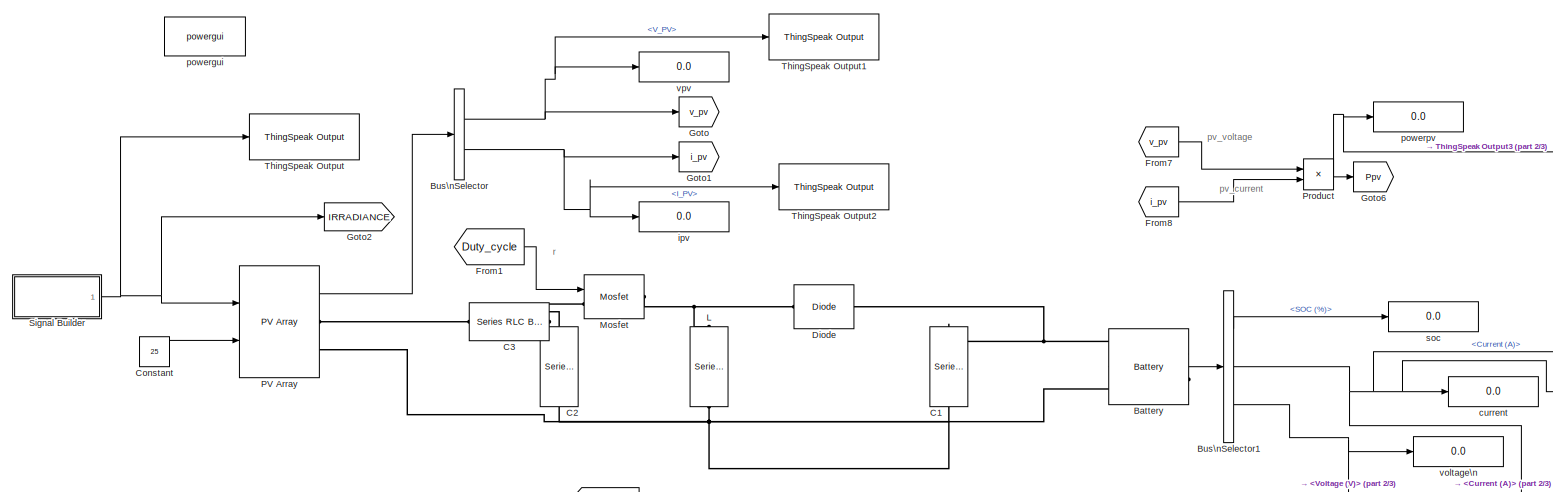
[diagram: root canvas - part 1/3, full width, top band]
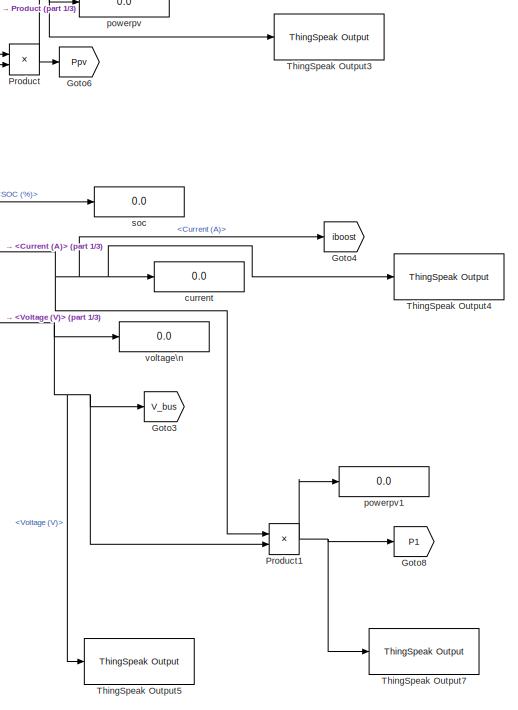
[diagram: root canvas - part 2/3, right side, full height]
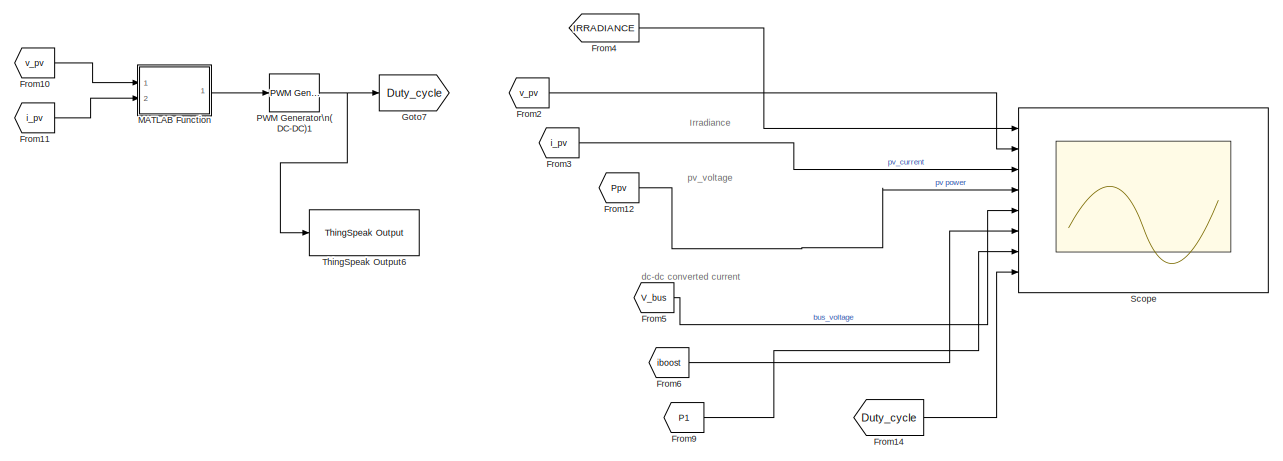
[diagram: root canvas - part 3/3, bottom center region]
MODEL mpptbuclboostPandO
KIND model
BLOCK [Reference] Battery  REF=spsBatteryLib/Battery
  BatType = Lead-Acid
  Batt_Tr = 1
  Char_age = [2.3478, 3]
  Dis_age = [2.3478, 10]
  Dis_rate = 20
  Dp = 0
  FullV = 13.0658
  FullV2 = 7.1
  MaxQ = 104.1667
  MaxQ2 = 4.8
  MinV = 9
  N1 = 1500
  N2 = 10500
  N3 = 1000
  N4 = 1400
  N5 = 950
  Neq0 = 0
  NomQ = 100
  NomT = 20
  NomV = 12
  Normal_OP = 31.0278
  Normal_OP2 = 5.655
  Ports = [0, 1, 0, 0, 0, 2]
  PresetModel = on
  Qeol = 5.4*0.9
  R = 0.0012
  RTWMemSecDataConstants = Inherit from model
  RTWMemSecDataInternal = Inherit from model
  RTWMemSecDataParameters = Inherit from model
  RTWMemSecFuncExecute = Inherit from model
  RTWMemSecFuncInitTerm = Inherit from model
  Rca = 0.6
  Reol = 0.013333*1.2
  SID = 1
  SOC = 45
  ShowAgeParam = off
  ShowTempParam = off
  SourceBlock = spsBatteryLib/Battery
  SourceProductBaseCode = PS
  SourceType = Battery
  T2 = -30
  Ta1 = 25
  Ta2 = 45
  Tci = 20
  ThermalPreset = no
  Tsim = 1e6
  Units = Time
  current = [6.5 13 32.5]
  expZone = [12.2171     0.333333]
  expZone2 = [6.58           1]
  ti = 2000
BLOCK [BusSelector] Bus\nSelector
  OutputSignals = V_PV,I_PV
  Ports = [1, 2]
  SID = 2
BLOCK [BusSelector] Bus\nSelector1
  OutputSignals = SOC (%),Current (A),Voltage (V)
  Ports = [1, 3]
  SID = 3
BLOCK [Reference] C1  REF=spsSeriesRLCBranchLib/Series RLC Branch
  BranchType = C
  Capacitance = 1.850e-6
  Inductance = 1e-3
  InitialCurrent = 0
  InitialVoltage = 0
  LConnTagsString = __new0
  Measurements = None
  NameLocation = left
  Ports = [0, 0, 0, 0, 0, 1, 1]
  RConnTagsString = __new0
  Resistance = 1
  SID = 4
  SetiL0 = off
  Setx0 = off
  SourceBlock = spsSeriesRLCBranchLib/Series RLC Branch
  SourceProductBaseCode = PS
  SourceType = Series RLC Branch
BLOCK [Reference] C2  REF=spsSeriesRLCBranchLib/Series RLC Branch
  BranchType = C
  Capacitance = 1000e-6
  Inductance = 1e-3
  InitialCurrent = 0
  InitialVoltage = 0
  LConnTagsString = __new0
  Measurements = None
  NameLocation = left
  Ports = [0, 0, 0, 0, 0, 1, 1]
  RConnTagsString = __new0
  Resistance = 0.001
  SID = 5
  SetiL0 = off
  Setx0 = off
  SourceBlock = spsSeriesRLCBranchLib/Series RLC Branch
  SourceProductBaseCode = PS
  SourceType = Series RLC Branch
BLOCK [Reference] C3  REF=spsSeriesRLCBranchLib/Series RLC Branch
  BranchType = R
  Capacitance = 1000e-6
  Inductance = 1e-3
  InitialCurrent = 0
  InitialVoltage = 0
  LConnTagsString = __new0
  Measurements = None
  NameLocation = top
  Ports = [0, 0, 0, 0, 0, 1, 1]
  RConnTagsString = __new0
  Resistance = 0.0001
  SID = 6
  SetiL0 = off
  Setx0 = off
  SourceBlock = spsSeriesRLCBranchLib/Series RLC Branch
  SourceProductBaseCode = PS
  SourceType = Series RLC Branch
BLOCK [Constant] Constant
  SID = 7
  Value = 25
BLOCK [Reference] Diode  REF=spsDiodeLib/Diode
  Cs = 250e-9
  IC = 0
  Lon = 0
  Measurements = off
  NameLocation = top
  Ports = [0, 0, 0, 0, 0, 1, 1]
  RTWMemSecDataConstants = Inherit from model
  RTWMemSecDataInternal = Inherit from model
  RTWMemSecDataParameters = Inherit from model
  RTWMemSecFuncExecute = Inherit from model
  RTWMemSecFuncInitTerm = Inherit from model
  Ron = 0.001
  Rs = 500
  SID = 8
  SourceBlock = spsDiodeLib/Diode
  SourceProductBaseCode = PS
  SourceType = Diode
  UseSnubber = 0
  Vf = 0.8
BLOCK [From] From1
  GotoTag = Duty_cycle
  SID = 9
  TagVisibility = global
BLOCK [From] From10
  GotoTag = v_pv
  SID = 58
  TagVisibility = global
BLOCK [From] From11
  GotoTag = i_pv
  SID = 60
  TagVisibility = global
BLOCK [From] From12
  GotoTag = Ppv
  SID = 10
  TagVisibility = global
BLOCK [From] From14
  GotoTag = Duty_cycle
  SID = 12
  TagVisibility = global
BLOCK [From] From2
  GotoTag = v_pv
  SID = 14
  TagVisibility = global
BLOCK [From] From3
  GotoTag = i_pv
  SID = 15
  TagVisibility = global
BLOCK [From] From4
  GotoTag = IRRADIANCE
  SID = 16
BLOCK [From] From5
  GotoTag = V_bus
  SID = 17
  TagVisibility = global
BLOCK [From] From6
  GotoTag = iboost
  SID = 18
  TagVisibility = global
BLOCK [From] From7
  GotoTag = v_pv
  SID = 19
  TagVisibility = global
BLOCK [From] From8
  GotoTag = i_pv
  SID = 20
  TagVisibility = global
BLOCK [From] From9
  GotoTag = P1
  SID = 21
  TagVisibility = global
BLOCK [Goto] Goto
  GotoTag = v_pv
  SID = 22
  TagVisibility = global
BLOCK [Goto] Goto1
  GotoTag = i_pv
  SID = 23
  TagVisibility = global
BLOCK [Goto] Goto2
  GotoTag = IRRADIANCE
  SID = 24
BLOCK [Goto] Goto3
  GotoTag = V_bus
  SID = 25
  TagVisibility = global
BLOCK [Goto] Goto4
  GotoTag = iboost
  SID = 26
  TagVisibility = global
BLOCK [Goto] Goto6
  GotoTag = Ppv
  SID = 27
  TagVisibility = global
BLOCK [Goto] Goto7
  GotoTag = Duty_cycle
  SID = 28
  TagVisibility = global
BLOCK [Goto] Goto8
  GotoTag = P1
  SID = 29
  TagVisibility = global
BLOCK [Reference] L  REF=spsSeriesRLCBranchLib/Series RLC Branch
  BranchType = L
  Capacitance = 1e-6
  Inductance = 1.92e-6
  InitialCurrent = 0
  InitialVoltage = 0
  LConnTagsString = __new0
  Measurements = None
  NameLocation = left
  Ports = [0, 0, 0, 0, 0, 1, 1]
  RConnTagsString = __new0
  Resistance = 1
  SID = 30
  SetiL0 = off
  Setx0 = off
  SourceBlock = spsSeriesRLCBranchLib/Series RLC Branch
  SourceProductBaseCode = PS
  SourceType = Series RLC Branch
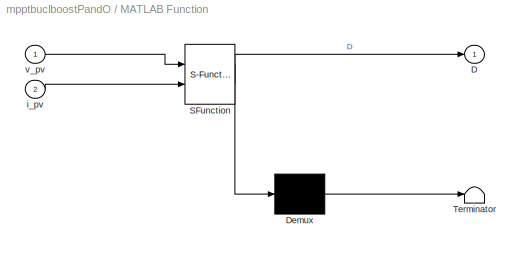
BLOCK [SubSystem] MATLAB Function
  ErrorFcn = Stateflow.Translate.translate
  PermitHierarchicalResolution = ExplicitOnly
  Ports = [2, 1]
  RequestExecContextInheritance = off
  SFBlockType = MATLAB Function
  SID = 57
  TreatAsAtomicUnit = on
BLOCK [Demux] MATLAB Function/ Demux 
  Outputs = 1
  Ports = [1, 1]
  SID = 57::24
BLOCK [S-Function] MATLAB Function/ SFunction 
  EnableBusSupport = on
  FunctionName = sf_sfun
  PortCounts = [2 2]
  Ports = [2, 2]
  SFcnIsStateOwnerBlock = off
  SFunctionDeploymentMode = off
  SID = 57::23
  Tag = Stateflow S-Function 2
BLOCK [Terminator] MATLAB Function/ Terminator 
  SID = 57::25
BLOCK [Outport] MATLAB Function/D
  SID = 57::5
BLOCK [Inport] MATLAB Function/i_pv
  Port = 2
  SID = 57::22
BLOCK [Inport] MATLAB Function/v_pv
  SID = 57::1
BLOCK [Reference] Mosfet  REF=spsMosfetLib/Mosfet
  Cs = inf
  IC = 0
  Lon = 0
  Measurements = off
  Ports = [1, 0, 0, 0, 0, 1, 1]
  RTWMemSecDataConstants = Inherit from model
  RTWMemSecDataInternal = Inherit from model
  RTWMemSecDataParameters = Inherit from model
  RTWMemSecFuncExecute = Inherit from model
  RTWMemSecFuncInitTerm = Inherit from model
  Rd = 0.01
  Ron = 0.1
  Rs = 1e5
  SID = 35
  SourceBlock = spsMosfetLib/Mosfet
  SourceProductBaseCode = PS
  SourceType = Mosfet
  Vfd = 0
BLOCK [Reference] PV Array  REF=spsPVArrayLib/PV Array
  BAL = on
  I0 = 2.9273e-10
  IL = 7.8654
  Im = 7.35
  Isc = 7.84
  ModuleName = User-defined
  Ncell = 60
  Npar = 1
  Nser = 1
  PlotType = one module @ 25 deg.C & specified irradiances
  PlotWhenSelected = off
  Pm = 213.15
  Ports = [2, 1, 0, 0, 0, 0, 2]
  RTWMemSecDataConstants = Inherit from model
  RTWMemSecDataInternal = Inherit from model
  RTWMemSecDataParameters = Inherit from model
  RTWMemSecFuncExecute = Inherit from model
  RTWMemSecFuncInitTerm = Inherit from model
  RobustCellTemperature = 313.3991
  RobustModel = off
  Rs = 0.39381
  Rsh = 313.0553
  SID = 36
  S_vec = [ 1000  500  100 ]
  SourceBlock = spsPVArrayLib/PV Array
  SourceProductBaseCode = PS
  SourceType = PV array
  Tc = 1e-6
  Temp_C_vec = [ 45 25  ]
  Tfilter = 5e-5
  Vm = 29
  Voc = 36.3
  alpha_Isc = 0.0079968
  alpha_Isc_pc = 0.102
  beta_Voc = -0.13104
  beta_Voc_pc = -0.36099
  nI = 0.98119
BLOCK [Reference] PWM Generator\n(DC-DC)1  REF=spsPWMGeneratorDCDCLib/PWM Generator\n(DC-DC)
  Fsw = 25000
  Ports = [1, 1]
  RTWMemSecDataConstants = Inherit from model
  RTWMemSecDataInternal = Inherit from model
  RTWMemSecDataParameters = Inherit from model
  RTWMemSecFuncExecute = Inherit from model
  RTWMemSecFuncInitTerm = Inherit from model
  SID = 37
  SourceBlock = spsPWMGeneratorDCDCLib/PWM Generator\n(DC-DC)
  SourceProductBaseCode = PS
  SourceType = PWM Generator (DC-DC)
  Ts = 10e-6
BLOCK [Product] Product
  Ports = [2, 1]
  SID = 38
BLOCK [Product] Product1
  Ports = [2, 1]
  SID = 39
BLOCK [Scope] Scope
  Floating = off
  NumInputPorts = 8
  Ports = [8]
  SID = 41
  ScopeSpecificationString = Simulink.scopes.TimeScopeBlockCfg('CurrentConfiguration', extmgr.ConfigurationSet(extmgr.Configuration('Core','General UI',true),extmgr.Configuration('Core','Source UI',true),extmgr.Configuration('Sources','WiredSimulink',true),extmgr.Configuration('Visuals','Time Domain',true,'SerializedDisplays',{struct('MinYLimReal','-97.5','MaxYLimReal','1127.5','YLabelReal','','MinYLimMag','0.00000','MaxYLimM...<+6144ch>
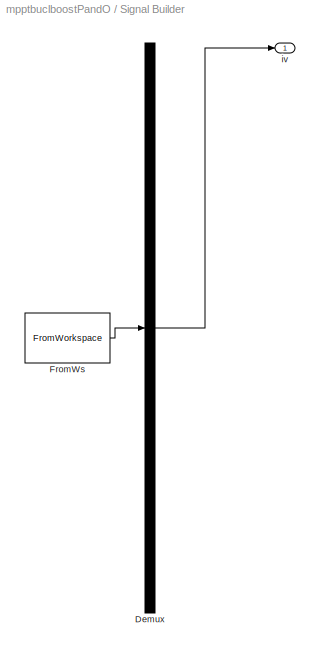
BLOCK [SubSystem] Signal Builder
  ClipboardFcn = sigbuilder_block('clipboard');
  CloseFcn = sigbuilder_block('close');
  ContinueFcn = sigbuilder_block('continue');
  CopyFcn = sigbuilder_block('copy');
  DeleteFcn = sigbuilder_block('delete');
  LoadFcn = sigbuilder_block('load');
  MaskHideContents = on
  ModelCloseFcn = sigbuilder_block('modelClose');
  NameChangeFcn = sigbuilder_block('namechange');
  OpenFcn = sigbuilder_block('open',[437.6 199.2 550.4 400 ]);
  PauseFcn = sigbuilder_block('pause');
  Ports = [0, 1]
  PreSaveFcn = sigbuilder_block('preSave');
  RequestExecContextInheritance = off
  SID = 42
  StartFcn = sigbuilder_block('start');
  StopFcn = sigbuilder_block('stop');
  Tag = STV Subsys
BLOCK [Demux] Signal Builder/Demux
  DisplayOption = none
  Outputs = 1
  Ports = [1, 1]
  SID = 42:1
  Tag = STV Demux
BLOCK [FromWorkspace] Signal Builder/FromWs
  SID = 42:2
  SigBuilderData = DataTag0
  Tag = STV FromWs
  VariableName = tuvar
  VnvData = DataTag1
BLOCK [Outport] Signal Builder/iv
  SID = 42:3
  Tag = STV Outport
BLOCK [Reference] ThingSpeak Output  REF=sldrtlib/Internet of Things/ThingSpeak Output
  ChannelFields = 1
  DrvAddress = 1429836
  DrvOptions = [1 20 81 67 53 57 69 55 71 84 66 70 67 56 80 78 56 72 97 112 105 46 116 104 105 110 103 115 112 101 97 107 46 99 111 109 0 0 0 0 0 0 0 0 0 0 0 0 0 0 0 0 0 0 0 0 0 0 0 0 0 0 0 0 0 0 0 0 0 0 0 0 0 0 0 0 0 0 0 0 0 0 0 0 0 0 0 0 0 0 0 0 0 0 0 0 0 0 0 0 0 0 0 0 0 0 0 0 0 0 0 0 0 0 0 0 0 0 0 0 0 0 0 0 0 0 0 0 0 0 0 0 0 0 0 0 0 0 0 0 0 0 0 0 0 0 0 0 0 0 0 0 0 0 0 0 0 0 0 0 0 0 0 0 0 0 0 0 0 0 0 0 0 0 0 0...<+161ch>  <repeated x8 — deduplicated; at blocks: ThingSpeak Output, ThingSpeak Output1, ThingSpeak Output2, ThingSpeak Output3, ThingSpeak Output4, ThingSpeak Output5, ThingSpeak Output6, ThingSpeak Output7>
  FinalValue = []
  InitialValue = []
  MaxMissedTicks = 20
  MultithreadedSim = auto
  OptParam = 0
  Ports = [1]
  SID = 61
  SampleTime = 0.1
  ShowMissedTicks = off
  SourceBlock = sldrtlib/Internet of Things/ThingSpeak Output
  SourceProductBaseCode = WT
  SourceType = Simulink Desktop Real-Time ThingSpeak Output
  YieldWhenWaiting = off
BLOCK [Reference] ThingSpeak Output1  REF=sldrtlib/Internet of Things/ThingSpeak Output
  ChannelFields = 2
  DrvAddress = 1429836
  FinalValue = []
  InitialValue = []
  MaxMissedTicks = 20
  MultithreadedSim = auto
  OptParam = 0
  Ports = [1]
  SID = 62
  SampleTime = 0.1
  ShowMissedTicks = off
  SourceBlock = sldrtlib/Internet of Things/ThingSpeak Output
  SourceProductBaseCode = WT
  SourceType = Simulink Desktop Real-Time ThingSpeak Output
  YieldWhenWaiting = off
BLOCK [Reference] ThingSpeak Output2  REF=sldrtlib/Internet of Things/ThingSpeak Output
  ChannelFields = 3
  DrvAddress = 1429836
  FinalValue = []
  InitialValue = []
  MaxMissedTicks = 20
  MultithreadedSim = auto
  OptParam = 0
  Ports = [1]
  SID = 63
  SampleTime = 0.1
  ShowMissedTicks = off
  SourceBlock = sldrtlib/Internet of Things/ThingSpeak Output
  SourceProductBaseCode = WT
  SourceType = Simulink Desktop Real-Time ThingSpeak Output
  YieldWhenWaiting = off
BLOCK [Reference] ThingSpeak Output3  REF=sldrtlib/Internet of Things/ThingSpeak Output
  ChannelFields = 4
  DrvAddress = 1429836
  FinalValue = []
  InitialValue = []
  MaxMissedTicks = 20
  MultithreadedSim = auto
  OptParam = 0
  Ports = [1]
  SID = 64
  SampleTime = 0.1
  ShowMissedTicks = off
  SourceBlock = sldrtlib/Internet of Things/ThingSpeak Output
  SourceProductBaseCode = WT
  SourceType = Simulink Desktop Real-Time ThingSpeak Output
  YieldWhenWaiting = off
BLOCK [Reference] ThingSpeak Output4  REF=sldrtlib/Internet of Things/ThingSpeak Output
  ChannelFields = 6
  DrvAddress = 1429836
  FinalValue = []
  InitialValue = []
  MaxMissedTicks = 20
  MultithreadedSim = auto
  OptParam = 0
  Ports = [1]
  SID = 65
  SampleTime = 0.1
  ShowMissedTicks = off
  SourceBlock = sldrtlib/Internet of Things/ThingSpeak Output
  SourceProductBaseCode = WT
  SourceType = Simulink Desktop Real-Time ThingSpeak Output
  YieldWhenWaiting = off
BLOCK [Reference] ThingSpeak Output5  REF=sldrtlib/Internet of Things/ThingSpeak Output
  ChannelFields = 5
  DrvAddress = 1429836
  FinalValue = []
  InitialValue = []
  MaxMissedTicks = 20
  MultithreadedSim = auto
  OptParam = 0
  Ports = [1]
  SID = 66
  SampleTime = 0.1
  ShowMissedTicks = off
  SourceBlock = sldrtlib/Internet of Things/ThingSpeak Output
  SourceProductBaseCode = WT
  SourceType = Simulink Desktop Real-Time ThingSpeak Output
  YieldWhenWaiting = off
BLOCK [Reference] ThingSpeak Output6  REF=sldrtlib/Internet of Things/ThingSpeak Output
  ChannelFields = 8
  DrvAddress = 1429836
  FinalValue = []
  InitialValue = []
  MaxMissedTicks = 20
  MultithreadedSim = auto
  OptParam = 0
  Ports = [1]
  SID = 67
  SampleTime = 0.1
  ShowMissedTicks = off
  SourceBlock = sldrtlib/Internet of Things/ThingSpeak Output
  SourceProductBaseCode = WT
  SourceType = Simulink Desktop Real-Time ThingSpeak Output
  YieldWhenWaiting = off
BLOCK [Reference] ThingSpeak Output7  REF=sldrtlib/Internet of Things/ThingSpeak Output
  ChannelFields = 7
  DrvAddress = 1429836
  FinalValue = []
  InitialValue = []
  MaxMissedTicks = 20
  MultithreadedSim = auto
  OptParam = 0
  Ports = [1]
  SID = 68
  SampleTime = 0.1
  ShowMissedTicks = off
  SourceBlock = sldrtlib/Internet of Things/ThingSpeak Output
  SourceProductBaseCode = WT
  SourceType = Simulink Desktop Real-Time ThingSpeak Output
  YieldWhenWaiting = off
BLOCK [Display] current
  Decimation = 1
  Ports = [1]
  SID = 43
BLOCK [Display] ipv
  Decimation = 1
  Ports = [1]
  SID = 44
BLOCK [Reference] powergui  REF=spspowerguiLib/powergui
  AutomaticDiscreteSolvers = off
  ContinueOnMaxIteration = off
  CurrentSourceSwitches = off
  DisableRonSwitches = off
  DisableSnubberDevices = off
  DisableVfSwitches = off
  DisplayEquations = off
  DisplayStyle = 1
  EnableUseOfTLC = off
  ErrMax = 1e-4
  ExternalGateDelay = off
  Frange = [0:2:500]
  FreqAxis = off
  FunctionMessages = off
  HookPort = off
  Interpol = off
  Iterations = 50
  MaxFrequency = 1000
  NonlinearTolerance = 1e-4
  Pbase = 100e6
  Ports = []
  Priority = 1
  RTWMemSecDataConstants = Inherit from model
  RTWMemSecDataInternal = Inherit from model
  RTWMemSecDataParameters = Inherit from model
  RTWMemSecFuncExecute = Inherit from model
  RTWMemSecFuncInitTerm = Inherit from model
  ResistiveCurrentMeasurement = off
  RestoreLinks = warning
  RmsSteady = 1
  SID = 45
  SPID = on
  SampleTime = 10e-6
  ShowGrid = off
  SolverType = Tustin/Backward Euler (TBE)
  SourceBlock = spspowerguiLib/powergui
  SourceProductBaseCode = PS
  SourceType = PSB option menu block
  StartTime = 0.0
  SwTol = 0
  Ts = 100
  UnitsV = kV
  UnitsW = MW
  Xlog = on
  Ylog = off
  ZoomFFT = off
  buscounter = 0
  cycles = 1
  display = off
  echomessages = off
  frequency = 60
  frequencyindice = 0
  frequencyindicesteady = 1
  fundamental = 60
  methode = off
  nMaxIteration = 100
  save = off
  structure = 0
  variable = ZData
  x0status = blocks
BLOCK [Display] powerpv
  Decimation = 1
  Ports = [1]
  SID = 46
BLOCK [Display] powerpv1
  Decimation = 1
  Ports = [1]
  SID = 47
BLOCK [Display] soc
  Decimation = 1
  Ports = [1]
  SID = 48
BLOCK [Display] voltage\n
  Decimation = 1
  Ports = [1]
  SID = 49
BLOCK [Display] vpv
  Decimation = 1
  Ports = [1]
  SID = 50
ANNOTATION (root): Irradiance
ANNOTATION (root): dc-dc converted current
ANNOTATION (root): pv_current
ANNOTATION (root): pv_voltage
ANNOTATION (root): r
LINE Battery:1 -> Bus\nSelector1:1
LINE Bus\nSelector1:1 -> soc:1
NET Bus\nSelector1:2 -> Goto4:1, Product1:1, ThingSpeak Output4:1, current:1
NET Bus\nSelector1:3 -> Goto3:1, Product1:2, ThingSpeak Output5:1, voltage\n:1
NET Bus\nSelector:1 -> Goto:1, ThingSpeak Output1:1, vpv:1
NET Bus\nSelector:2 -> Goto1:1, ThingSpeak Output2:1, ipv:1
LINE Constant:1 -> PV Array:2
LINE From10:1 -> MATLAB Function:1
LINE From11:1 -> MATLAB Function:2
LINE From12:1 -> Scope:4
LINE From14:1 -> Scope:8
LINE From1:1 -> Mosfet:1
LINE From2:1 -> Scope:2
LINE From3:1 -> Scope:3
LINE From4:1 -> Scope:1
LINE From5:1 -> Scope:5
LINE From6:1 -> Scope:6
LINE From7:1 -> Product:1
LINE From8:1 -> Product:2
LINE From9:1 -> Scope:7
LINE MATLAB Function/ Demux :1 -> MATLAB Function/ Terminator :1
LINE MATLAB Function/ SFunction :1 -> MATLAB Function/ Demux :1
LINE MATLAB Function/ SFunction :2 -> MATLAB Function/D:1
LINE MATLAB Function/i_pv:1 -> MATLAB Function/ SFunction :2
LINE MATLAB Function/v_pv:1 -> MATLAB Function/ SFunction :1
LINE MATLAB Function:1 -> PWM Generator\n(DC-DC)1:1
LINE PV Array:1 -> Bus\nSelector:1
NET PWM Generator\n(DC-DC)1:1 -> Goto7:1, ThingSpeak Output6:1
NET Product1:1 -> Goto8:1, ThingSpeak Output7:1, powerpv1:1
NET Product:1 -> Goto6:1, ThingSpeak Output3:1, powerpv:1
LINE Signal Builder/Demux:1 -> Signal Builder/iv:1
LINE Signal Builder/FromWs:1 -> Signal Builder/Demux:1
NET Signal Builder:1 -> Goto2:1, PV Array:1, ThingSpeak Output:1
PNET net1: Battery:LConn1 -- C1:RConn1 -- C2:RConn1 -- L:RConn1 -- PV Array:RConn2
PNET net2: Battery:LConn2 -- C1:LConn1 -- Diode:LConn1
PNET net3: C2:LConn1 -- C3:LConn1 -- Mosfet:LConn1
PLINE C3:RConn1 -- PV Array:RConn1
PNET net4: Diode:RConn1 -- L:LConn1 -- Mosfet:RConn1
note: NET lines group one-source signal fan-out (src -> all destinations, sorted); 1:1 wires keep LINE; PNET lines group multi-terminal physical nets as a canonical sorted terminal list (undirected conserving connections); 2-terminal nets keep the pairwise PLINE form
CHART MATLAB Function states=1 transitions=1
  STATE_LABEL 'eML_blk_kernel()'
